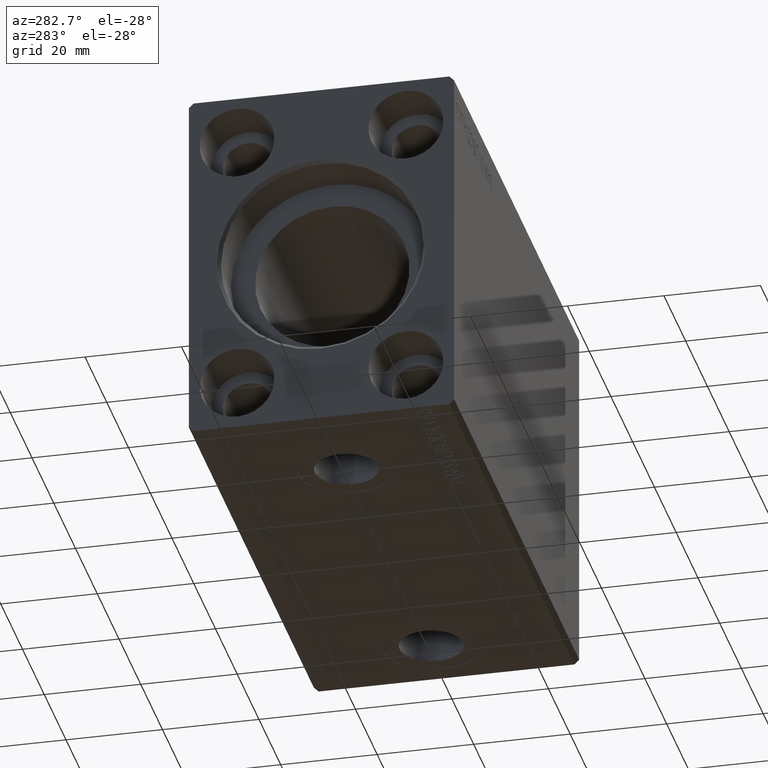
[diagram: clean part render]
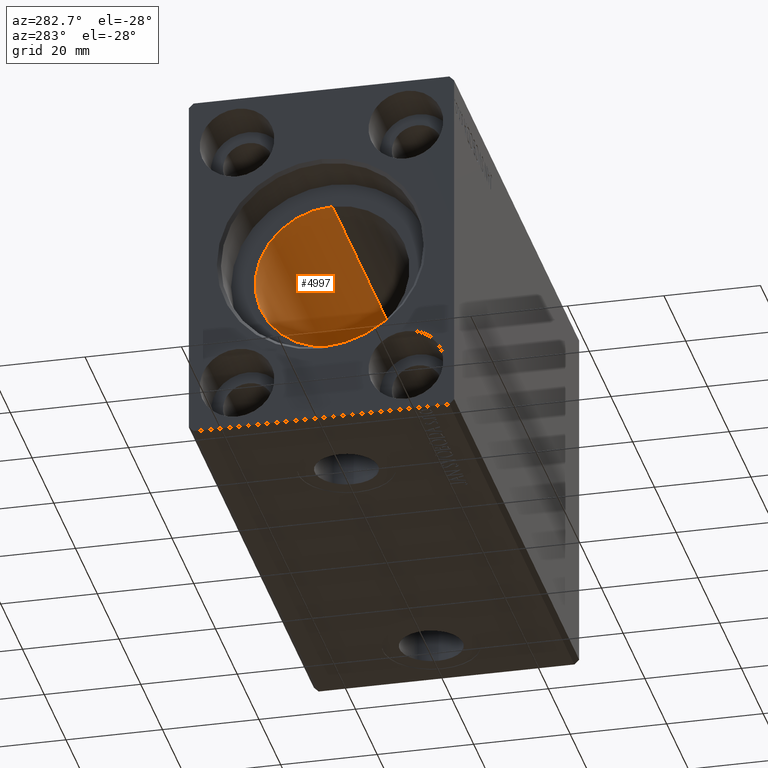
[diagram: same view with one face highlighted and labeled with its STEP entity id]
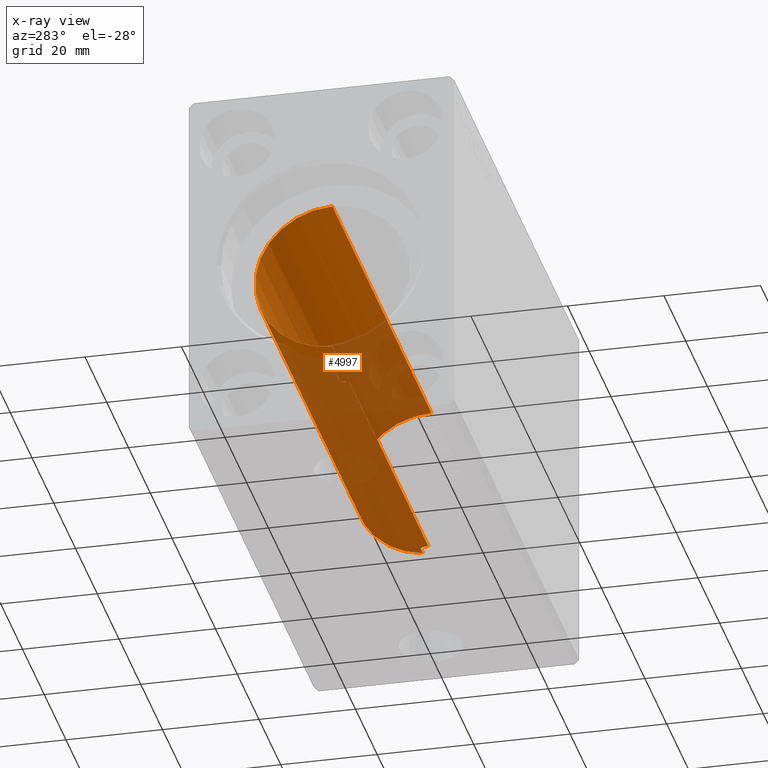
[diagram: x-ray of the same camera — body ghosted, the highlighted face saturated]
A machine part, auxiliary view. The second image highlights one B-rep face of the part: STEP entity #4997.
The next image is the same camera in x-ray: the body ghosted, the highlighted face saturated — about 56% of this face is hidden behind the body in this view.
In plain terms, the highlighted cylindrical surface (partial cylindrical patch) has radius 16 mm, axis along (-1, -0, -0).
Its self-contained STEP definition (entity closure, byte-faithful):
#63 = VECTOR ( 'NONE', #23988, 1000.000000000000000 ) ;
#509 = VECTOR ( 'NONE', #40357, 1000.000000000000000 ) ;
#834 = EDGE_CURVE ( 'NONE', #19565, #22404, #33723, .T. ) ;
#1323 = CARTESIAN_POINT ( 'NONE',  ( 9.999999999999994671, 1.959434878635765131E-15, -16.00000000000000000 ) ) ;
#1500 = CARTESIAN_POINT ( 'NONE',  ( 20.36400824168861234, 0.8002234119869107154, -15.98070334047259777 ) ) ;
#1630 = DIRECTION ( 'NONE',  ( -1.000000000000000000, -0.000000000000000000, -0.000000000000000000 ) ) ;
#1724 = DIRECTION ( 'NONE',  ( 0.000000000000000000, 0.000000000000000000, 1.000000000000000000 ) ) ;
#2213 = AXIS2_PLACEMENT_3D ( 'NONE', #23123, #3285, #7581 ) ;
#2798 = VECTOR ( 'NONE', #40452, 1000.000000000000000 ) ;
#2918 = VECTOR ( 'NONE', #18328, 1000.000000000000000 ) ;
#3285 = DIRECTION ( 'NONE',  ( -1.000000000000000000, 0.000000000000000000, 0.000000000000000000 ) ) ;
#4316 = AXIS2_PLACEMENT_3D ( 'NONE', #37623, #1630, #24282 ) ;
#4659 = CARTESIAN_POINT ( 'NONE',  ( 98.26435230214251249, 0.3237335850403359472, -15.99751506009604007 ) ) ;
#4997 = ADVANCED_FACE ( 'NONE', ( #15189 ), #38260, .F. ) ;
#5102 = LINE ( 'NONE', #8119, #2798 ) ;
#5820 = EDGE_CURVE ( 'NONE', #40825, #36848, #21363, .T. ) ;
#6295 = CARTESIAN_POINT ( 'NONE',  ( 98.90894763336741846, 1.786057109949259036, -15.89999999999998970 ) ) ;
#6512 = ORIENTED_EDGE ( 'NONE', *, *, #25681, .T. ) ;
#6639 = VERTEX_POINT ( 'NONE', #1323 ) ;
#7581 = DIRECTION ( 'NONE',  ( 0.000000000000000000, 0.000000000000000000, 1.000000000000000000 ) ) ;
#8119 = CARTESIAN_POINT ( 'NONE',  ( 101.2000000000000028, 0.000000000000000000, 16.00000000000000000 ) ) ;
#8174 = CARTESIAN_POINT ( 'NONE',  ( 20.80302300273467964, 1.662044306363391177, -15.91393043707981292 ) ) ;
#8229 = LINE ( 'NONE', #17308, #509 ) ;
#9033 = EDGE_CURVE ( 'NONE', #41124, #42206, #13904, .T. ) ;
#10921 = CARTESIAN_POINT ( 'NONE',  ( 98.32103554224153186, 0.6416550435731656066, -15.98791951246751886 ) ) ;
#11128 = CARTESIAN_POINT ( 'NONE',  ( 98.70828422114124123, 1.528580496451063198, -15.92742812959714982 ) ) ;
#11410 = CARTESIAN_POINT ( 'NONE',  ( 20.54529199024537789, 1.250171241089528928, -15.95169574138015278 ) ) ;
#12631 = EDGE_CURVE ( 'NONE', #35162, #6639, #28607, .T. ) ;
#13436 = CARTESIAN_POINT ( 'NONE',  ( 20.32103554224154607, 0.6416550435731651625, -15.98791951246752241 ) ) ;
#13904 = CIRCLE ( 'NONE', #2213, 16.00000000000000000 ) ;
#14352 = CARTESIAN_POINT ( 'NONE',  ( 98.36400824168860879, 0.8002234119869107154, -15.98070334047259777 ) ) ;
#14532 = VERTEX_POINT ( 'NONE', #6295 ) ;
#14740 = CARTESIAN_POINT ( 'NONE',  ( 25.09105236663257088, 1.786057109949259036, -15.89999999999998970 ) ) ;
#14771 = CARTESIAN_POINT ( 'NONE',  ( 98.80302300273469029, 1.662044306363389179, -15.91393043707981647 ) ) ;
#15189 = FACE_OUTER_BOUND ( 'NONE', #15820, .T. ) ;
#15700 = CARTESIAN_POINT ( 'NONE',  ( 101.2000000000000028, 1.786057109949259036, -15.89999999999998970 ) ) ;
#15754 = ORIENTED_EDGE ( 'NONE', *, *, #36896, .T. ) ;
#15820 = EDGE_LOOP ( 'NONE', ( #28837, #39456, #24631, #25896, #15754, #26438, #38403, #6512, #18393, #37064 ) ) ;
#17122 = B_SPLINE_CURVE_WITH_KNOTS ( 'NONE', 3,
 ( #25562, #18877, #24715, #41071, #31165, #41507, #28565, #31575 ),
 .UNSPECIFIED., .F., .F.,
 ( 4, 2, 2, 4 ),
 ( 0.000000000000000000, 0.0009687575396886391509, 0.001453136309532957046, 0.001937515079377275266 ),
 .UNSPECIFIED. ) ;
#17308 = CARTESIAN_POINT ( 'NONE',  ( 101.2000000000000028, 1.959434878635765131E-15, -16.00000000000000000 ) ) ;
#17525 = AXIS2_PLACEMENT_3D ( 'NONE', #34470, #31236, #1724 ) ;
#18328 = DIRECTION ( 'NONE',  ( -1.000000000000000000, -0.000000000000000000, -0.000000000000000000 ) ) ;
#18393 = ORIENTED_EDGE ( 'NONE', *, *, #5820, .F. ) ;
#18877 = CARTESIAN_POINT ( 'NONE',  ( 25.30299467954352011, 1.537922561208759253, -15.92787311163533914 ) ) ;
#19565 = VERTEX_POINT ( 'NONE', #40941 ) ;
#19791 = CARTESIAN_POINT ( 'NONE',  ( 101.2000000000000028, 0.000000000000000000, 16.00000000000000000 ) ) ;
#20729 = CARTESIAN_POINT ( 'NONE',  ( 9.999999999999994671, 0.000000000000000000, 16.00000000000000000 ) ) ;
#21222 = B_SPLINE_CURVE_WITH_KNOTS ( 'NONE', 3,
 ( #27706, #23863, #4659, #10921, #14352, #40640, #36996, #11128, #14771, #24285 ),
 .UNSPECIFIED., .F., .F.,
 ( 4, 2, 2, 2, 4 ),
 ( 0.001937515079377273965, 0.002421672136522718625, 0.002905829193668163068, 0.003389986250813607511, 0.003874143307959051954 ),
 .UNSPECIFIED. ) ;
#21363 = LINE ( 'NONE', #34489, #2918 ) ;
#21375 = EDGE_CURVE ( 'NONE', #34136, #6639, #8229, .T. ) ;
#22404 = VERTEX_POINT ( 'NONE', #29539 ) ;
#22777 = VECTOR ( 'NONE', #24040, 1000.000000000000000 ) ;
#23123 = CARTESIAN_POINT ( 'NONE',  ( 101.2000000000000028, 0.000000000000000000, 0.000000000000000000 ) ) ;
#23863 = CARTESIAN_POINT ( 'NONE',  ( 98.24999999999997158, 0.1628529246558471366, -15.99999999999999645 ) ) ;
#23988 = DIRECTION ( 'NONE',  ( -1.000000000000000000, -0.000000000000000000, -0.000000000000000000 ) ) ;
#24040 = DIRECTION ( 'NONE',  ( -1.000000000000000000, -0.000000000000000000, -0.000000000000000000 ) ) ;
#24282 = DIRECTION ( 'NONE',  ( 0.000000000000000000, 0.000000000000000000, 1.000000000000000000 ) ) ;
#24285 = CARTESIAN_POINT ( 'NONE',  ( 98.90894763336741846, 1.786057109949259036, -15.89999999999998970 ) ) ;
#24567 = CARTESIAN_POINT ( 'NONE',  ( 20.70828422114123057, 1.528580496451064752, -15.92742812959714982 ) ) ;
#24631 = ORIENTED_EDGE ( 'NONE', *, *, #37168, .F. ) ;
#24715 = CARTESIAN_POINT ( 'NONE',  ( 25.46669777805105639, 1.258673386848676135, -15.95335904956524864 ) ) ;
#24777 = CARTESIAN_POINT ( 'NONE',  ( 20.26435230214253380, 0.3237335850403343929, -15.99751506009603652 ) ) ;
#25562 = CARTESIAN_POINT ( 'NONE',  ( 25.09105236663257088, 1.786057109949259036, -15.89999999999998970 ) ) ;
#25681 = EDGE_CURVE ( 'NONE', #34136, #36848, #36069, .T. ) ;
#25896 = ORIENTED_EDGE ( 'NONE', *, *, #9033, .F. ) ;
#26438 = ORIENTED_EDGE ( 'NONE', *, *, #12631, .T. ) ;
#27706 = CARTESIAN_POINT ( 'NONE',  ( 98.25000000000000000, 1.952197382189107282E-15, -16.00000000000000000 ) ) ;
#28092 = CARTESIAN_POINT ( 'NONE',  ( 101.2000000000000028, 1.959434878635765131E-15, -16.00000000000000000 ) ) ;
#28565 = CARTESIAN_POINT ( 'NONE',  ( 25.75000000000000355, 0.1629275007895856497, -16.00000000000000000 ) ) ;
#28607 = CIRCLE ( 'NONE', #17525, 16.00000000000000000 ) ;
#28837 = ORIENTED_EDGE ( 'NONE', *, *, #834, .F. ) ;
#29539 = CARTESIAN_POINT ( 'NONE',  ( 25.75000000000000000, 1.966672454835068530E-15, -16.00000000000000000 ) ) ;
#31010 = CARTESIAN_POINT ( 'NONE',  ( 20.25000000000000000, 0.1628529246558463039, -16.00000000000000000 ) ) ;
#31165 = CARTESIAN_POINT ( 'NONE',  ( 25.67843830749630740, 0.6438297815899759469, -15.98783114994251697 ) ) ;
#31236 = DIRECTION ( 'NONE',  ( -1.000000000000000000, 0.000000000000000000, 0.000000000000000000 ) ) ;
#31575 = CARTESIAN_POINT ( 'NONE',  ( 25.75000000000000000, 1.966672454835068530E-15, -16.00000000000000000 ) ) ;
#33415 = EDGE_CURVE ( 'NONE', #19565, #14532, #21222, .T. ) ;
#33723 = LINE ( 'NONE', #28092, #22777 ) ;
#34136 = VERTEX_POINT ( 'NONE', #41674 ) ;
#34470 = CARTESIAN_POINT ( 'NONE',  ( 9.999999999999994671, 0.000000000000000000, 0.000000000000000000 ) ) ;
#34489 = CARTESIAN_POINT ( 'NONE',  ( 101.2000000000000028, 1.786057109949259036, -15.89999999999998970 ) ) ;
#35162 = VERTEX_POINT ( 'NONE', #20729 ) ;
#36069 = B_SPLINE_CURVE_WITH_KNOTS ( 'NONE', 3,
 ( #40926, #31010, #24777, #13436, #1500, #37916, #11410, #24567, #8174, #37703 ),
 .UNSPECIFIED., .F., .F.,
 ( 4, 2, 2, 2, 4 ),
 ( 0.001937515079377276567, 0.002421672136522722528, 0.002905829193668168706, 0.003389986250813614450, 0.003874143307959060194 ),
 .UNSPECIFIED. ) ;
#36804 = CARTESIAN_POINT ( 'NONE',  ( 20.90894763336742912, 1.786057109949259036, -15.89999999999998970 ) ) ;
#36848 = VERTEX_POINT ( 'NONE', #36804 ) ;
#36896 = EDGE_CURVE ( 'NONE', #41124, #35162, #5102, .T. ) ;
#36918 = LINE ( 'NONE', #37343, #63 ) ;
#36996 = CARTESIAN_POINT ( 'NONE',  ( 98.54529199024536013, 1.250171241089528706, -15.95169574138015633 ) ) ;
#37064 = ORIENTED_EDGE ( 'NONE', *, *, #40550, .T. ) ;
#37168 = EDGE_CURVE ( 'NONE', #42206, #14532, #36918, .T. ) ;
#37343 = CARTESIAN_POINT ( 'NONE',  ( 101.2000000000000028, 1.786057109949259036, -15.89999999999998970 ) ) ;
#37623 = CARTESIAN_POINT ( 'NONE',  ( 101.2000000000000028, 0.000000000000000000, 0.000000000000000000 ) ) ;
#37703 = CARTESIAN_POINT ( 'NONE',  ( 20.90894763336742912, 1.786057109949259036, -15.89999999999998970 ) ) ;
#37916 = CARTESIAN_POINT ( 'NONE',  ( 20.47635814035335855, 1.104555034037125516, -15.96255602784426841 ) ) ;
#38260 = CYLINDRICAL_SURFACE ( 'NONE', #4316, 16.00000000000000000 ) ;
#38403 = ORIENTED_EDGE ( 'NONE', *, *, #21375, .F. ) ;
#39456 = ORIENTED_EDGE ( 'NONE', *, *, #33415, .T. ) ;
#40357 = DIRECTION ( 'NONE',  ( -1.000000000000000000, -0.000000000000000000, -0.000000000000000000 ) ) ;
#40452 = DIRECTION ( 'NONE',  ( -1.000000000000000000, -0.000000000000000000, -0.000000000000000000 ) ) ;
#40550 = EDGE_CURVE ( 'NONE', #40825, #22404, #17122, .T. ) ;
#40640 = CARTESIAN_POINT ( 'NONE',  ( 98.47635814035336921, 1.104555034037125516, -15.96255602784426486 ) ) ;
#40825 = VERTEX_POINT ( 'NONE', #14740 ) ;
#40926 = CARTESIAN_POINT ( 'NONE',  ( 20.25000000000000000, 1.952197298178576320E-15, -16.00000000000000000 ) ) ;
#40941 = CARTESIAN_POINT ( 'NONE',  ( 98.25000000000000000, 1.952197382189107282E-15, -16.00000000000000000 ) ) ;
#41071 = CARTESIAN_POINT ( 'NONE',  ( 25.63617786229477957, 0.7997846173174859574, -15.98073294566550473 ) ) ;
#41124 = VERTEX_POINT ( 'NONE', #19791 ) ;
#41507 = CARTESIAN_POINT ( 'NONE',  ( 25.73536268302067853, 0.3260974502564771282, -15.99746611559688780 ) ) ;
#41674 = CARTESIAN_POINT ( 'NONE',  ( 20.25000000000000000, 1.952197298178576320E-15, -16.00000000000000000 ) ) ;
#42206 = VERTEX_POINT ( 'NONE', #15700 ) ;